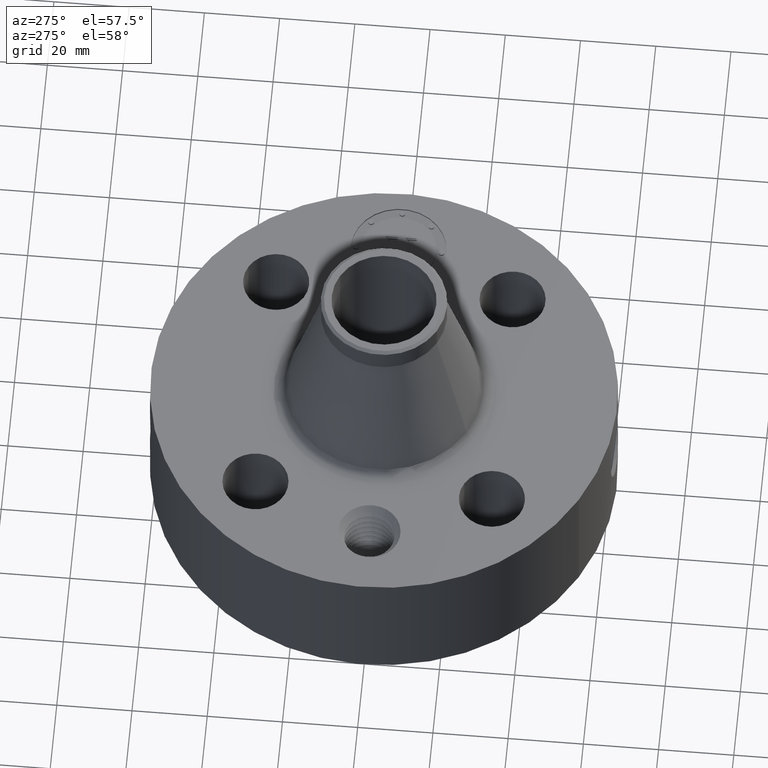
[diagram: clean part render]
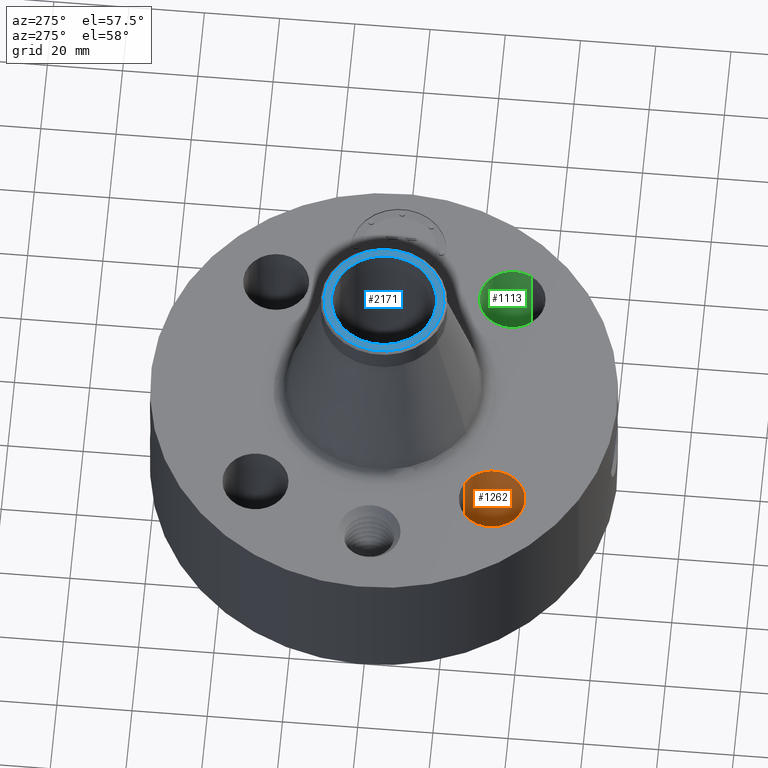
[diagram: same view with three faces highlighted in distinct colors, each labeled with its STEP entity id]
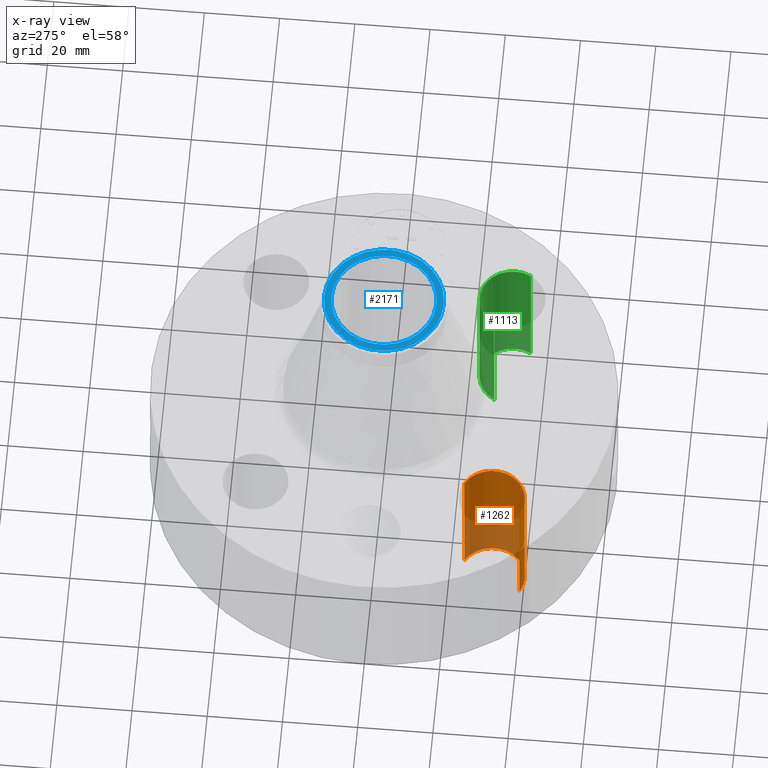
[diagram: x-ray of the same camera — body ghosted, the three highlighted faces saturated]
A machine part, auxiliary view with three faces highlighted in distinct colors.
The next image is the same camera in x-ray (body ghosted, the three faces saturated) — at least one of them is partly hidden behind the body in this view.
Their STEP definitions:

[orange] entity #1262 — the highlighted cylindrical surface (edge-blend (fillet) strip) has radius 8.763 mm, axis along (0, -0, -1).
#263=AXIS2_PLACEMENT_3D('Circle Axis2P3D',#261,#262,$) ;
#520=AXIS2_PLACEMENT_3D('Circle Axis2P3D',#518,#519,$) ;
#1244=AXIS2_PLACEMENT_3D('Cylinder Axis2P3D',#1241,#1242,#1243) ;
#261=CARTESIAN_POINT('Axis2P3D Location',(-1.23743686708,-1.23743686708,0.0600000000002)) ;
#265=CARTESIAN_POINT('Vertex',(-1.07203505626,-0.934670883228,0.0600000000002)) ;
#267=CARTESIAN_POINT('Vertex',(-1.4028386779,-1.54020285093,0.0600000000002)) ;
#513=CARTESIAN_POINT('Vertex',(-1.4028386779,-1.54020285093,1.56000000001)) ;
#515=CARTESIAN_POINT('Vertex',(-1.07203505626,-0.934670883228,1.56000000001)) ;
#518=CARTESIAN_POINT('Axis2P3D Location',(-1.23743686708,-1.23743686708,1.56000000001)) ;
#1241=CARTESIAN_POINT('Axis2P3D Location',(-1.23743686708,-1.23743686708,1.55606299213)) ;
#1246=CARTESIAN_POINT('Line Origine',(-1.07203505626,-0.934670883228,0.810000000003)) ;
#1251=CARTESIAN_POINT('Line Origine',(-1.4028386779,-1.54020285093,0.810000000003)) ;
#262=DIRECTION('Axis2P3D Direction',(0.,0.,-0.0393700787402)) ;
#519=DIRECTION('Axis2P3D Direction',(0.,0.,-0.0393700787402)) ;
#1242=DIRECTION('Axis2P3D Direction',(0.,-0.,-0.0393700787402)) ;
#1243=DIRECTION('Axis2P3D XDirection',(-0.0188750212049,-0.0345504945626,0.)) ;
#1247=DIRECTION('Vector Direction',(0.,0.,-0.0393700787402)) ;
#1252=DIRECTION('Vector Direction',(0.,0.,-0.0393700787402)) ;
#1248=VECTOR('Line Direction',#1247,0.0393700787402) ;
#1253=VECTOR('Line Direction',#1252,0.0393700787402) ;
#1257=ORIENTED_EDGE('',*,*,#1250,.F.) ;
#1258=ORIENTED_EDGE('',*,*,#269,.T.) ;
#1259=ORIENTED_EDGE('',*,*,#1255,.T.) ;
#1260=ORIENTED_EDGE('',*,*,#522,.F.) ;
#1262=ADVANCED_FACE('PartBody',(#1261),#1245,.F.) ;
#264=CIRCLE('generated circle',#263,0.345000000001) ;
#521=CIRCLE('generated circle',#520,0.345000000001) ;
#1245=CYLINDRICAL_SURFACE('generated cylinder',#1244,0.345000000001) ;
#269=EDGE_CURVE('',#266,#268,#264,.T.) ;
#522=EDGE_CURVE('',#516,#514,#521,.T.) ;
#1250=EDGE_CURVE('',#266,#516,#1249,.F.) ;
#1255=EDGE_CURVE('',#268,#514,#1254,.F.) ;
#1256=EDGE_LOOP('',(#1257,#1258,#1259,#1260)) ;
#1261=FACE_OUTER_BOUND('',#1256,.T.) ;
#1249=LINE('Line',#1246,#1248) ;
#1254=LINE('Line',#1251,#1253) ;
#266=VERTEX_POINT('',#265) ;
#268=VERTEX_POINT('',#267) ;
#514=VERTEX_POINT('',#513) ;
#516=VERTEX_POINT('',#515) ;

[blue] entity #2171 — the highlighted planar face has unit normal (0, 0, -1).
#1121=AXIS2_PLACEMENT_3D('Circle Axis2P3D',#1119,#1120,$) ;
#1189=AXIS2_PLACEMENT_3D('Circle Axis2P3D',#1187,#1188,$) ;
#2147=AXIS2_PLACEMENT_3D('Plane Axis2P3D',#2144,#2145,#2146) ;
#2151=AXIS2_PLACEMENT_3D('Circle Axis2P3D',#2149,#2150,$) ;
#2160=AXIS2_PLACEMENT_3D('Circle Axis2P3D',#2158,#2159,$) ;
#1119=CARTESIAN_POINT('Axis2P3D Location',(0.,0.,3.31000000001)) ;
#1123=CARTESIAN_POINT('Vertex',(0.262964907925,0.481354035199,3.31000000001)) ;
#1125=CARTESIAN_POINT('Vertex',(-0.262964907925,-0.481354035199,3.31000000001)) ;
#1187=CARTESIAN_POINT('Axis2P3D Location',(0.,0.,3.31000000001)) ;
#2144=CARTESIAN_POINT('Axis2P3D Location',(0.,0.660000000003,3.31000000001)) ;
#2149=CARTESIAN_POINT('Axis2P3D Location',(0.,0.,3.31000000001)) ;
#2153=CARTESIAN_POINT('Vertex',(0.300714950335,-0.550455024324,3.31000000001)) ;
#2155=CARTESIAN_POINT('Vertex',(-0.300714950335,0.550455024324,3.31000000001)) ;
#2158=CARTESIAN_POINT('Axis2P3D Location',(0.,0.,3.31000000001)) ;
#1120=DIRECTION('Axis2P3D Direction',(0.,0.,-0.0393700787402)) ;
#1188=DIRECTION('Axis2P3D Direction',(0.,0.,-0.0393700787402)) ;
#2145=DIRECTION('Axis2P3D Direction',(0.,0.,-0.0393700787402)) ;
#2146=DIRECTION('Axis2P3D XDirection',(0.0393700787402,0.,0.)) ;
#2150=DIRECTION('Axis2P3D Direction',(0.,0.,-0.0393700787402)) ;
#2159=DIRECTION('Axis2P3D Direction',(0.,0.,-0.0393700787402)) ;
#2164=ORIENTED_EDGE('',*,*,#2157,.T.) ;
#2165=ORIENTED_EDGE('',*,*,#2162,.T.) ;
#2168=ORIENTED_EDGE('',*,*,#1191,.T.) ;
#2169=ORIENTED_EDGE('',*,*,#1127,.T.) ;
#2170=FACE_BOUND('',#2167,.T.) ;
#2171=ADVANCED_FACE('PartBody',(#2166,#2170),#2148,.F.) ;
#1122=CIRCLE('generated circle',#1121,0.548500000002) ;
#1190=CIRCLE('generated circle',#1189,0.548500000002) ;
#2152=CIRCLE('generated circle',#2151,0.627240157483) ;
#2161=CIRCLE('generated circle',#2160,0.627240157483) ;
#1127=EDGE_CURVE('',#1124,#1126,#1122,.T.) ;
#1191=EDGE_CURVE('',#1126,#1124,#1190,.T.) ;
#2157=EDGE_CURVE('',#2154,#2156,#2152,.F.) ;
#2162=EDGE_CURVE('',#2156,#2154,#2161,.F.) ;
#2163=EDGE_LOOP('',(#2164,#2165)) ;
#2167=EDGE_LOOP('',(#2168,#2169)) ;
#2166=FACE_OUTER_BOUND('',#2163,.T.) ;
#2148=PLANE('',#2147) ;
#1124=VERTEX_POINT('',#1123) ;
#1126=VERTEX_POINT('',#1125) ;
#2154=VERTEX_POINT('',#2153) ;
#2156=VERTEX_POINT('',#2155) ;

[green] entity #1113 — the highlighted cylindrical surface (edge-blend (fillet) strip) has radius 8.763 mm, axis along (0, -0, -1).
#236=AXIS2_PLACEMENT_3D('Circle Axis2P3D',#234,#235,$) ;
#475=AXIS2_PLACEMENT_3D('Circle Axis2P3D',#473,#474,$) ;
#1088=AXIS2_PLACEMENT_3D('Cylinder Axis2P3D',#1085,#1086,#1087) ;
#229=CARTESIAN_POINT('Vertex',(1.54020285093,-1.4028386779,0.0600000000002)) ;
#231=CARTESIAN_POINT('Vertex',(0.934670883228,-1.07203505626,0.0600000000002)) ;
#234=CARTESIAN_POINT('Axis2P3D Location',(1.23743686708,-1.23743686708,0.0600000000002)) ;
#473=CARTESIAN_POINT('Axis2P3D Location',(1.23743686708,-1.23743686708,1.56000000001)) ;
#477=CARTESIAN_POINT('Vertex',(0.934670883228,-1.07203505626,1.56000000001)) ;
#479=CARTESIAN_POINT('Vertex',(1.54020285093,-1.4028386779,1.56000000001)) ;
#1085=CARTESIAN_POINT('Axis2P3D Location',(1.23743686708,-1.23743686708,1.55606299213)) ;
#1090=CARTESIAN_POINT('Line Origine',(1.54020285093,-1.4028386779,0.810000000003)) ;
#1095=CARTESIAN_POINT('Line Origine',(0.934670883228,-1.07203505626,0.810000000003)) ;
#235=DIRECTION('Axis2P3D Direction',(0.,0.,-0.0393700787402)) ;
#474=DIRECTION('Axis2P3D Direction',(0.,0.,-0.0393700787402)) ;
#1086=DIRECTION('Axis2P3D Direction',(0.,-0.,-0.0393700787402)) ;
#1087=DIRECTION('Axis2P3D XDirection',(-0.0345504945626,0.0188750212049,0.)) ;
#1091=DIRECTION('Vector Direction',(0.,0.,-0.0393700787402)) ;
#1096=DIRECTION('Vector Direction',(0.,0.,-0.0393700787402)) ;
#1092=VECTOR('Line Direction',#1091,0.0393700787402) ;
#1097=VECTOR('Line Direction',#1096,0.0393700787402) ;
#1108=ORIENTED_EDGE('',*,*,#1099,.F.) ;
#1109=ORIENTED_EDGE('',*,*,#238,.T.) ;
#1110=ORIENTED_EDGE('',*,*,#1094,.T.) ;
#1111=ORIENTED_EDGE('',*,*,#481,.F.) ;
#1113=ADVANCED_FACE('PartBody',(#1112),#1089,.F.) ;
#237=CIRCLE('generated circle',#236,0.345000000001) ;
#476=CIRCLE('generated circle',#475,0.345000000001) ;
#1089=CYLINDRICAL_SURFACE('generated cylinder',#1088,0.345000000001) ;
#238=EDGE_CURVE('',#232,#230,#237,.T.) ;
#481=EDGE_CURVE('',#478,#480,#476,.T.) ;
#1094=EDGE_CURVE('',#230,#480,#1093,.F.) ;
#1099=EDGE_CURVE('',#232,#478,#1098,.F.) ;
#1107=EDGE_LOOP('',(#1108,#1109,#1110,#1111)) ;
#1112=FACE_OUTER_BOUND('',#1107,.T.) ;
#1093=LINE('Line',#1090,#1092) ;
#1098=LINE('Line',#1095,#1097) ;
#230=VERTEX_POINT('',#229) ;
#232=VERTEX_POINT('',#231) ;
#478=VERTEX_POINT('',#477) ;
#480=VERTEX_POINT('',#479) ;